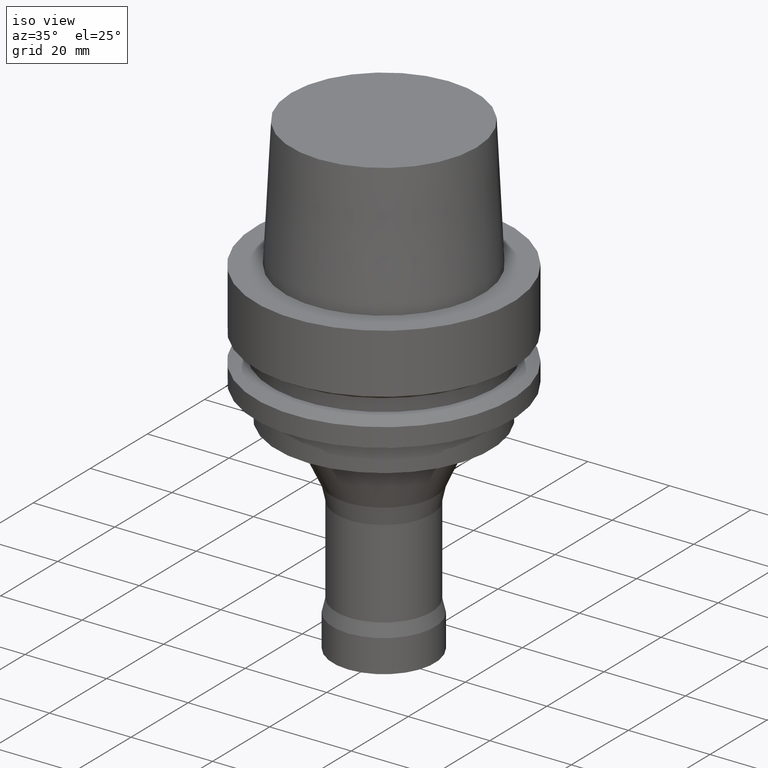
[diagram: clean part render]
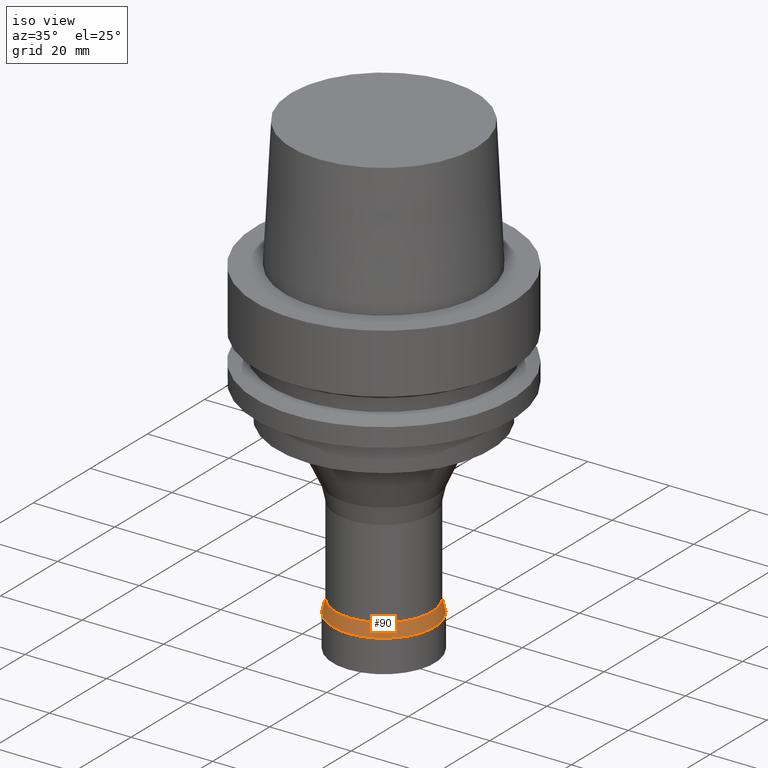
[diagram: same view with one face highlighted and labeled with its STEP entity id]
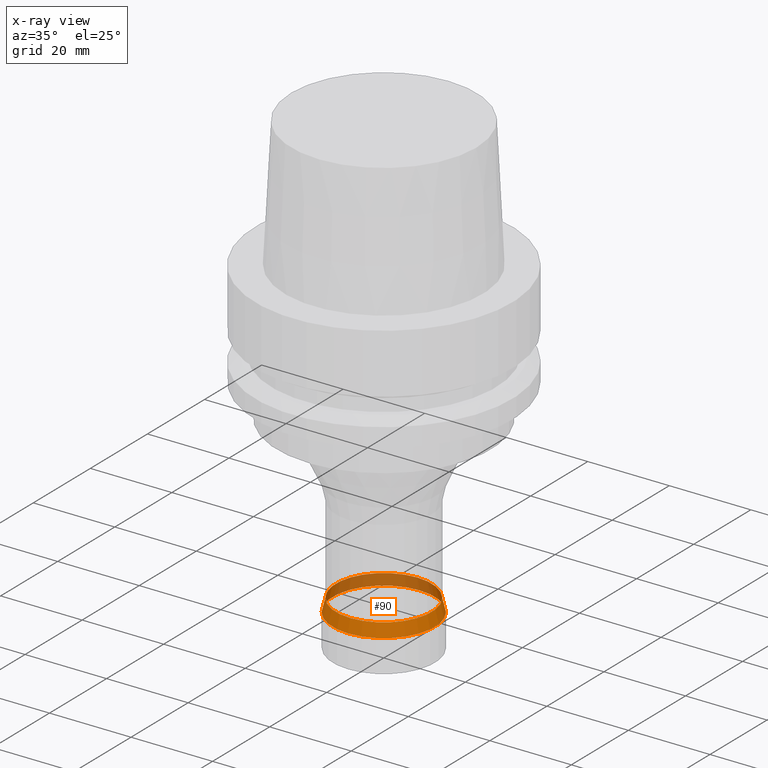
[diagram: x-ray of the same camera — body ghosted, the highlighted face saturated]
A machine part, iso view. The second image highlights one B-rep face of the part: STEP entity #90.
The next image is the same camera in x-ray: the body ghosted, the highlighted face saturated — about 35% of this face is hidden behind the body in this view.
In plain terms, the highlighted conical surface has half-angle 13.508 deg.
Its self-contained STEP definition (entity closure, byte-faithful):
#90=ADVANCED_FACE('',(#141,#142),#143,.T.);
#141=FACE_BOUND('',#199,.T.);
#142=FACE_BOUND('',#200,.T.);
#143=CONICAL_SURFACE('',#201,12.125,0.235767644230606);
#199=EDGE_LOOP('',(#287));
#200=EDGE_LOOP('',(#288));
#201=AXIS2_PLACEMENT_3D('',#289,#290,#291);
#287=ORIENTED_EDGE('',*,*,#326,.F.);
#288=ORIENTED_EDGE('',*,*,#325,.T.);
#289=CARTESIAN_POINT('',(4.61930843572136E-015,9.23861687144272E-015,-75.43903171));
#290=DIRECTION('',(6.12323399573677E-017,1.22464679914735E-016,-1.0));
#291=DIRECTION('',(-1.23259516440783E-032,1.0,1.22464679914735E-016));
#325=EDGE_CURVE('',#359,#359,#360,.T.);
#326=EDGE_CURVE('',#361,#361,#362,.T.);
#359=VERTEX_POINT('',#397);
#360=CIRCLE('',#398,11.75);
#361=VERTEX_POINT('',#399);
#362=CIRCLE('',#400,12.5);
#397=CARTESIAN_POINT('',(4.52372669472541E-015,11.75,-73.87806342));
#398=AXIS2_PLACEMENT_3D('',#450,#451,#452);
#399=CARTESIAN_POINT('',(4.71489017671731E-015,12.5,-77.0));
#400=AXIS2_PLACEMENT_3D('',#453,#454,#455);
#450=CARTESIAN_POINT('',(4.52372669472541E-015,9.04745338945081E-015,-73.87806342));
#451=DIRECTION('',(6.12323399573677E-017,1.22464679914735E-016,-1.0));
#452=DIRECTION('',(-1.23259516440783E-032,1.0,1.22464679914735E-016));
#453=CARTESIAN_POINT('',(4.71489017671731E-015,9.42978035343462E-015,-77.0));
#454=DIRECTION('',(6.12323399573677E-017,1.22464679914735E-016,-1.0));
#455=DIRECTION('',(-1.23259516440783E-032,1.0,1.22464679914735E-016));